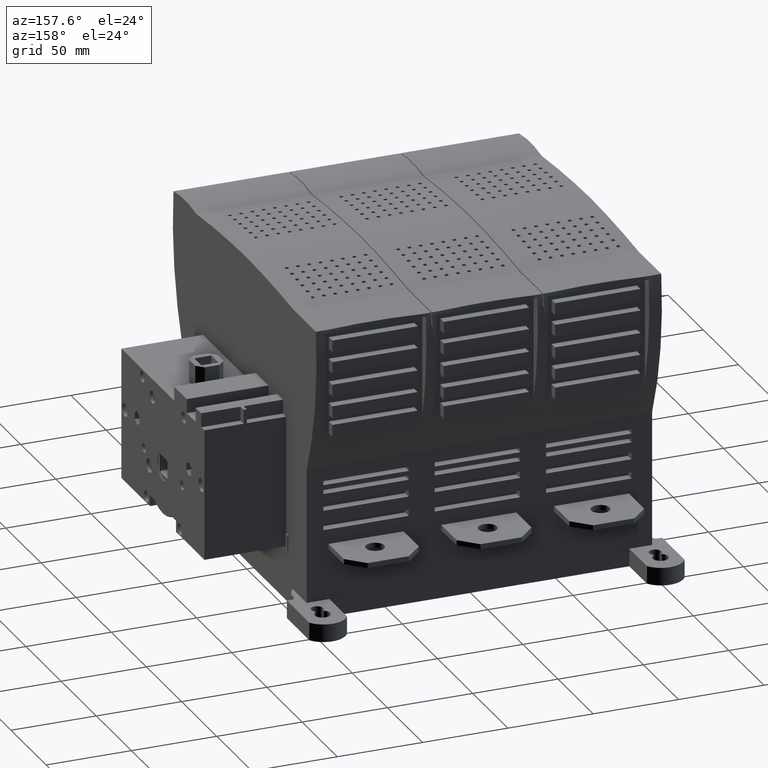
[diagram: clean part render]
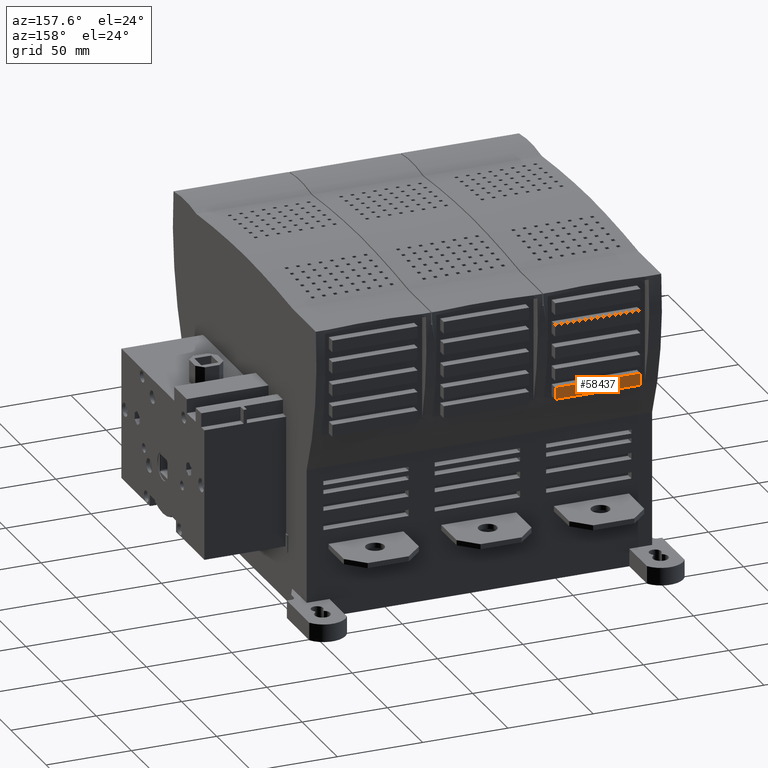
[diagram: same view with one face highlighted and labeled with its STEP entity id]
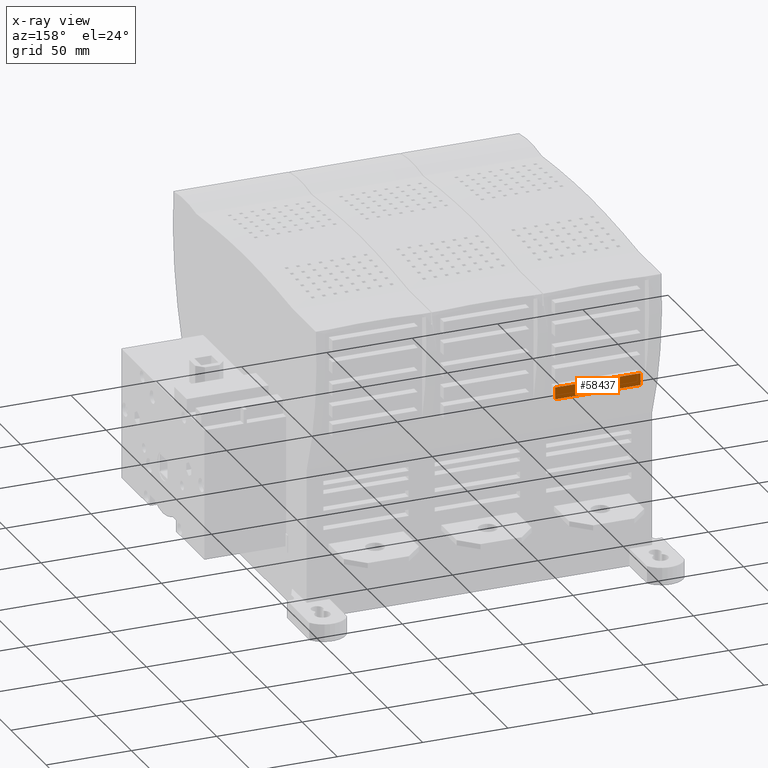
[diagram: x-ray of the same camera — body ghosted, the highlighted face saturated]
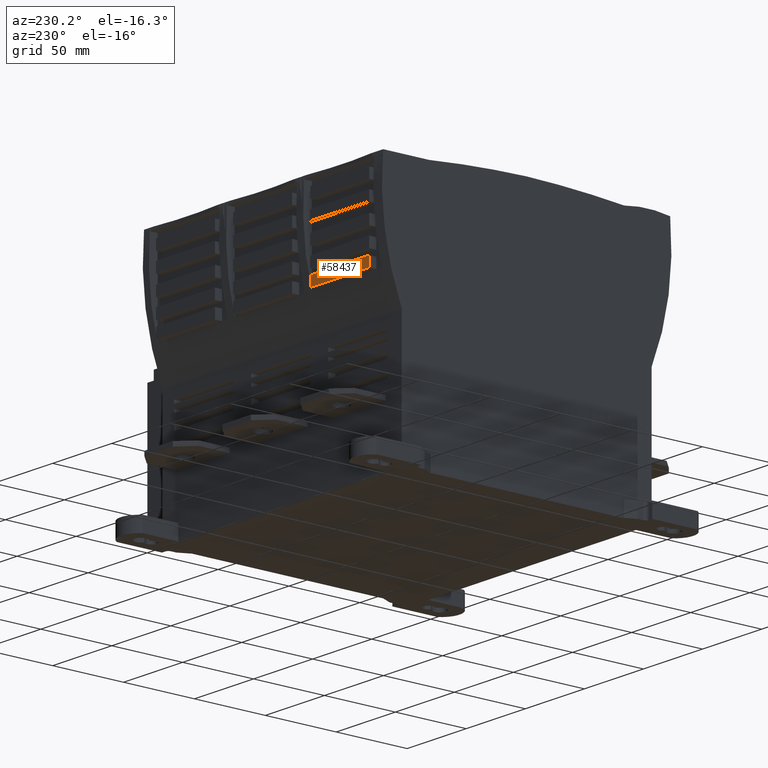
[diagram: same view with one face highlighted and labeled with its STEP entity id]
A machine part, auxiliary view. The second image highlights one B-rep face of the part: STEP entity #58437.
The next image is the same camera in x-ray: the body ghosted, the highlighted face saturated — about 0% of this face is hidden behind the body in this view.
A second angle (auxiliary view) of the same face is appended — the face is thin or edge-on in the first view.
In plain terms, the highlighted planar face has unit normal (0, 1, 0).
Its self-contained STEP definition (entity closure, byte-faithful):
#20171=DIRECTION('',(1.E0,0.E0,0.E0));
#20172=VECTOR('',#20171,5.E1);
#20173=CARTESIAN_POINT('',(-8.9138E1,1.00928E2,3.0357E1));
#20174=LINE('',#20173,#20172);
#20175=DIRECTION('',(0.E0,0.E0,1.E0));
#20176=VECTOR('',#20175,7.E0);
#20177=CARTESIAN_POINT('',(-8.9138E1,1.00928E2,2.3357E1));
#20178=LINE('',#20177,#20176);
#20179=DIRECTION('',(-1.E0,0.E0,0.E0));
#20180=VECTOR('',#20179,5.E1);
#20181=CARTESIAN_POINT('',(-3.9138E1,1.00928E2,2.3357E1));
#20182=LINE('',#20181,#20180);
#20183=DIRECTION('',(0.E0,0.E0,-1.E0));
#20184=VECTOR('',#20183,7.E0);
#20185=CARTESIAN_POINT('',(-3.9138E1,1.00928E2,3.0357E1));
#20186=LINE('',#20185,#20184);
#21654=CARTESIAN_POINT('',(-8.9138E1,1.00928E2,3.0357E1));
#21655=CARTESIAN_POINT('',(-3.9138E1,1.00928E2,3.0357E1));
#21656=VERTEX_POINT('',#21654);
#21657=VERTEX_POINT('',#21655);
#21658=CARTESIAN_POINT('',(-3.9138E1,1.00928E2,2.3357E1));
#21659=VERTEX_POINT('',#21658);
#21660=CARTESIAN_POINT('',(-8.9138E1,1.00928E2,2.3357E1));
#21661=VERTEX_POINT('',#21660);
#58422=CARTESIAN_POINT('',(1.491E2,1.00928E2,0.E0));
#58423=DIRECTION('',(0.E0,1.E0,0.E0));
#58424=DIRECTION('',(0.E0,0.E0,-1.E0));
#58425=AXIS2_PLACEMENT_3D('',#58422,#58423,#58424);
#58426=PLANE('',#58425);
#58428=ORIENTED_EDGE('',*,*,#58427,.F.);
#58430=ORIENTED_EDGE('',*,*,#58429,.F.);
#58432=ORIENTED_EDGE('',*,*,#58431,.F.);
#58434=ORIENTED_EDGE('',*,*,#58433,.F.);
#58435=EDGE_LOOP('',(#58428,#58430,#58432,#58434));
#58436=FACE_OUTER_BOUND('',#58435,.F.);
#58437=ADVANCED_FACE('',(#58436),#58426,.T.);
#58427=EDGE_CURVE('',#21656,#21657,#20174,.T.);
#58429=EDGE_CURVE('',#21661,#21656,#20178,.T.);
#58431=EDGE_CURVE('',#21659,#21661,#20182,.T.);
#58433=EDGE_CURVE('',#21657,#21659,#20186,.T.);